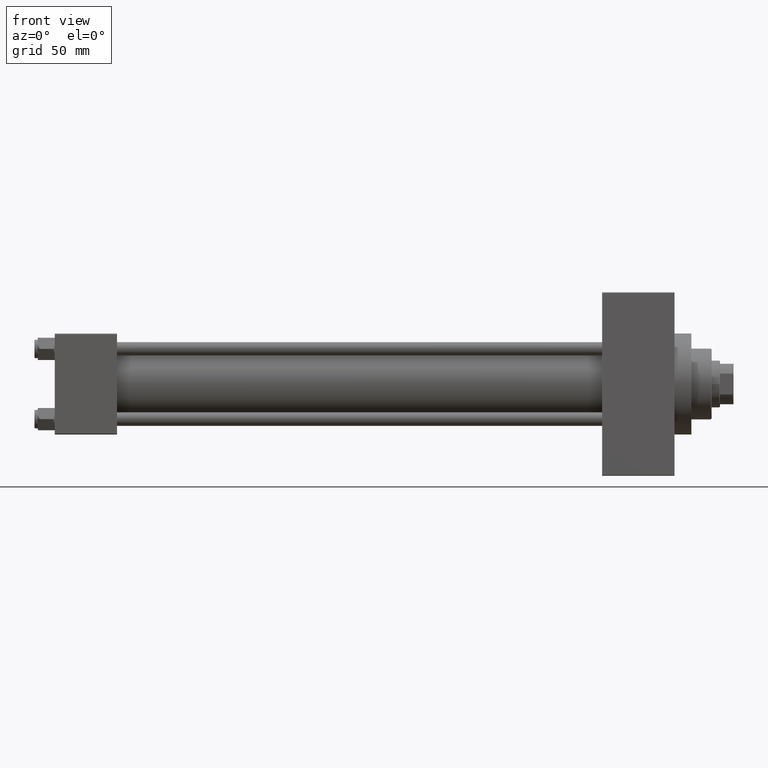
[diagram: clean part render]
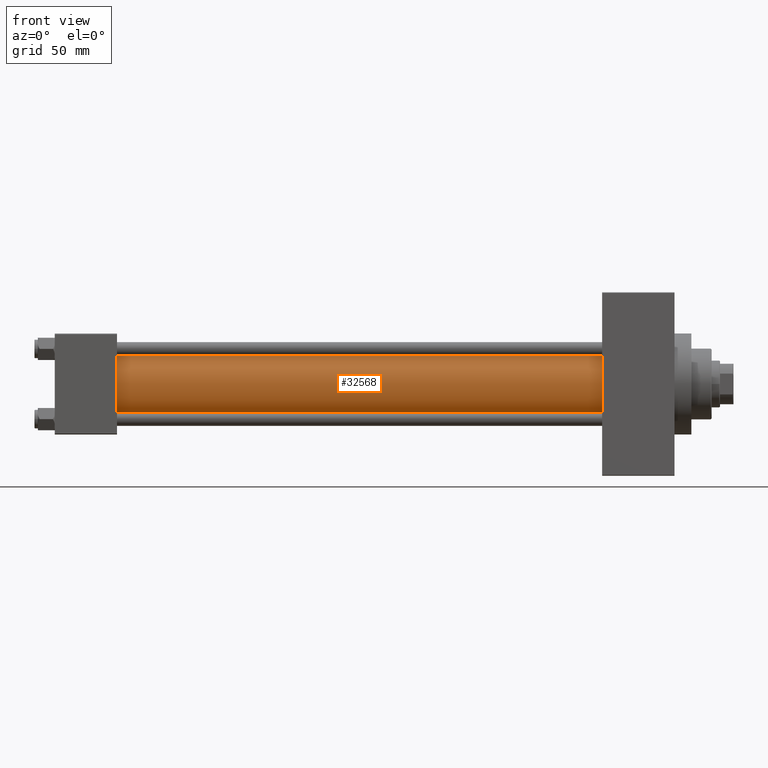
[diagram: same view with one face highlighted and labeled with its STEP entity id]
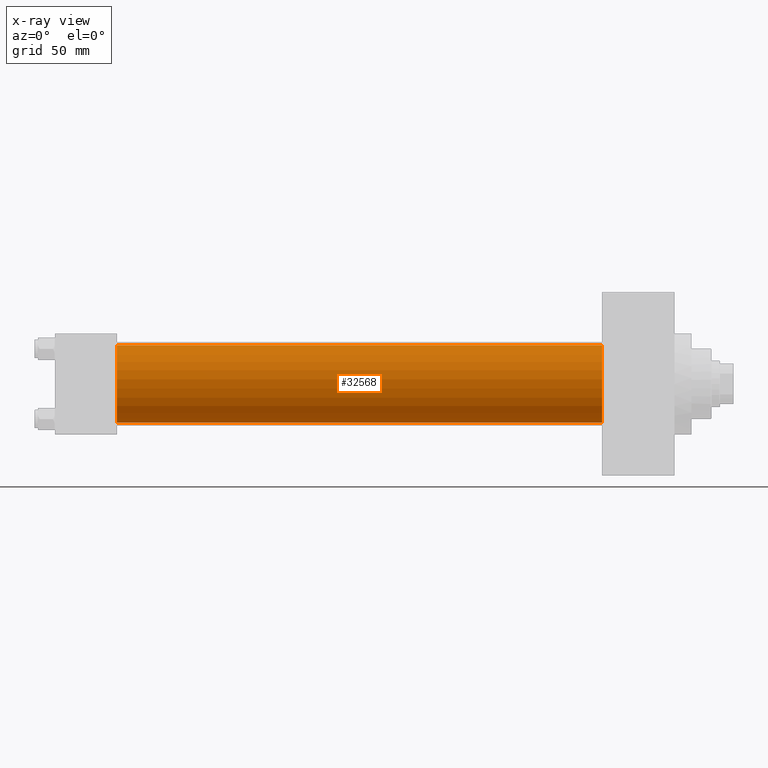
[diagram: x-ray of the same camera — body ghosted, the highlighted face saturated]
A machine part, front view. The second image highlights one B-rep face of the part: STEP entity #32568.
The next image is the same camera in x-ray: the body ghosted, the highlighted face saturated — about 0% of this face is hidden behind the body in this view.
In plain terms, the highlighted cylindrical surface (partial cylindrical patch) has radius 23 mm, axis along (-1, -0, -0).
Its self-contained STEP definition (entity closure, byte-faithful):
#5662 = VECTOR ( 'NONE', #38334, 1000.000000000000000 ) ;
#7400 = VERTEX_POINT ( 'NONE', #24897 ) ;
#9019 = CYLINDRICAL_SURFACE ( 'NONE', #10089, 23.00000000000000000 ) ;
#9206 = VERTEX_POINT ( 'NONE', #46667 ) ;
#10089 = AXIS2_PLACEMENT_3D ( 'NONE', #39353, #46896, #24782 ) ;
#10222 = EDGE_CURVE ( 'NONE', #7400, #9206, #31038, .T. ) ;
#12244 = DIRECTION ( 'NONE',  ( 1.000000000000000000, -0.000000000000000000, 0.000000000000000000 ) ) ;
#12841 = ORIENTED_EDGE ( 'NONE', *, *, #30351, .T. ) ;
#16042 = VECTOR ( 'NONE', #31309, 1000.000000000000000 ) ;
#19898 = CIRCLE ( 'NONE', #23864, 23.00000000000000000 ) ;
#20418 = CIRCLE ( 'NONE', #45237, 23.00000000000000000 ) ;
#21736 = ORIENTED_EDGE ( 'NONE', *, *, #41565, .F. ) ;
#22957 = ORIENTED_EDGE ( 'NONE', *, *, #48847, .F. ) ;
#23864 = AXIS2_PLACEMENT_3D ( 'NONE', #33586, #48917, #30562 ) ;
#24782 = DIRECTION ( 'NONE',  ( 0.000000000000000000, 0.000000000000000000, 1.000000000000000000 ) ) ;
#24897 = CARTESIAN_POINT ( 'NONE',  ( 324.9999999999999432, -2.602085213965210642E-15, 23.00000000000000000 ) ) ;
#27296 = CARTESIAN_POINT ( 'NONE',  ( 324.9999999999999432, 2.146024240737016609E-16, -23.00000000000000000 ) ) ;
#28731 = VERTEX_POINT ( 'NONE', #44234 ) ;
#30351 = EDGE_CURVE ( 'NONE', #9206, #38436, #20418, .T. ) ;
#30562 = DIRECTION ( 'NONE',  ( 0.000000000000000000, 0.000000000000000000, -1.000000000000000000 ) ) ;
#31038 = LINE ( 'NONE', #45366, #5662 ) ;
#31309 = DIRECTION ( 'NONE',  ( -1.000000000000000000, -0.000000000000000000, -0.000000000000000000 ) ) ;
#32005 = ORIENTED_EDGE ( 'NONE', *, *, #10222, .T. ) ;
#32568 = ADVANCED_FACE ( 'NONE', ( #47888 ), #9019, .T. ) ;
#33586 = CARTESIAN_POINT ( 'NONE',  ( 324.9999999999999432, -2.602085213965210642E-15, 0.000000000000000000 ) ) ;
#34549 = DIRECTION ( 'NONE',  ( 0.000000000000000000, 0.000000000000000000, 1.000000000000000000 ) ) ;
#35457 = CARTESIAN_POINT ( 'NONE',  ( 36.99999999999997868, 2.146024240737016609E-16, -23.00000000000000000 ) ) ;
#38334 = DIRECTION ( 'NONE',  ( -1.000000000000000000, -0.000000000000000000, -0.000000000000000000 ) ) ;
#38436 = VERTEX_POINT ( 'NONE', #35457 ) ;
#39353 = CARTESIAN_POINT ( 'NONE',  ( 324.9999999999999432, -2.602085213965210642E-15, 0.000000000000000000 ) ) ;
#41565 = EDGE_CURVE ( 'NONE', #7400, #28731, #19898, .T. ) ;
#42955 = EDGE_LOOP ( 'NONE', ( #22957, #21736, #32005, #12841 ) ) ;
#43100 = LINE ( 'NONE', #27296, #16042 ) ;
#44234 = CARTESIAN_POINT ( 'NONE',  ( 324.9999999999999432, 2.146024240737016609E-16, -23.00000000000000000 ) ) ;
#45237 = AXIS2_PLACEMENT_3D ( 'NONE', #46348, #12244, #34549 ) ;
#45366 = CARTESIAN_POINT ( 'NONE',  ( 324.9999999999999432, -2.602085213965210642E-15, 23.00000000000000000 ) ) ;
#46348 = CARTESIAN_POINT ( 'NONE',  ( 36.99999999999997868, -2.602085213965210642E-15, 0.000000000000000000 ) ) ;
#46667 = CARTESIAN_POINT ( 'NONE',  ( 36.99999999999997868, -2.602085213965210642E-15, 23.00000000000000000 ) ) ;
#46896 = DIRECTION ( 'NONE',  ( -1.000000000000000000, -0.000000000000000000, -0.000000000000000000 ) ) ;
#47888 = FACE_OUTER_BOUND ( 'NONE', #42955, .T. ) ;
#48847 = EDGE_CURVE ( 'NONE', #28731, #38436, #43100, .T. ) ;
#48917 = DIRECTION ( 'NONE',  ( 1.000000000000000000, 0.000000000000000000, 0.000000000000000000 ) ) ;